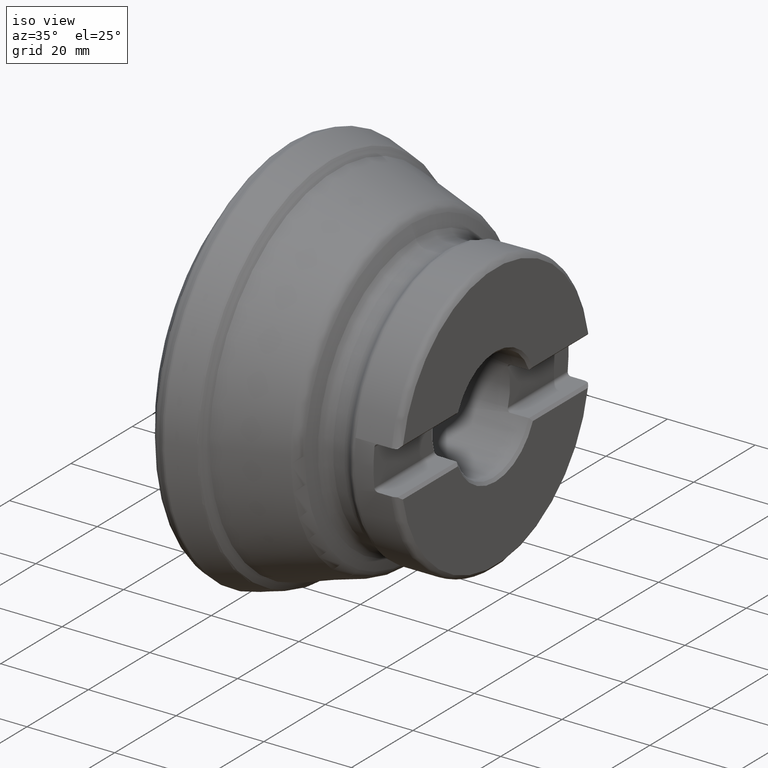
[diagram: clean part render]
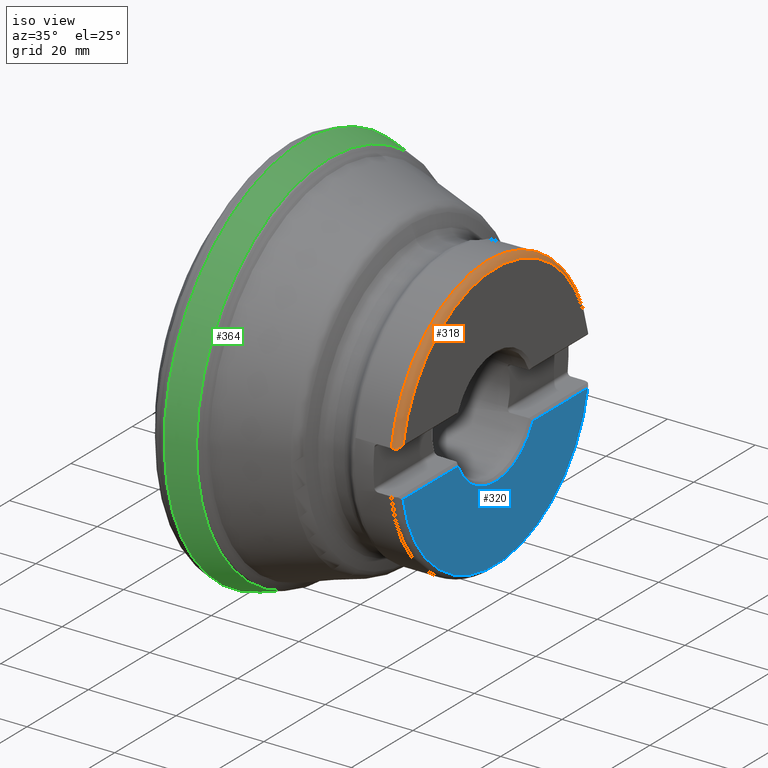
[diagram: same view with three faces highlighted in distinct colors, each labeled with its STEP entity id]
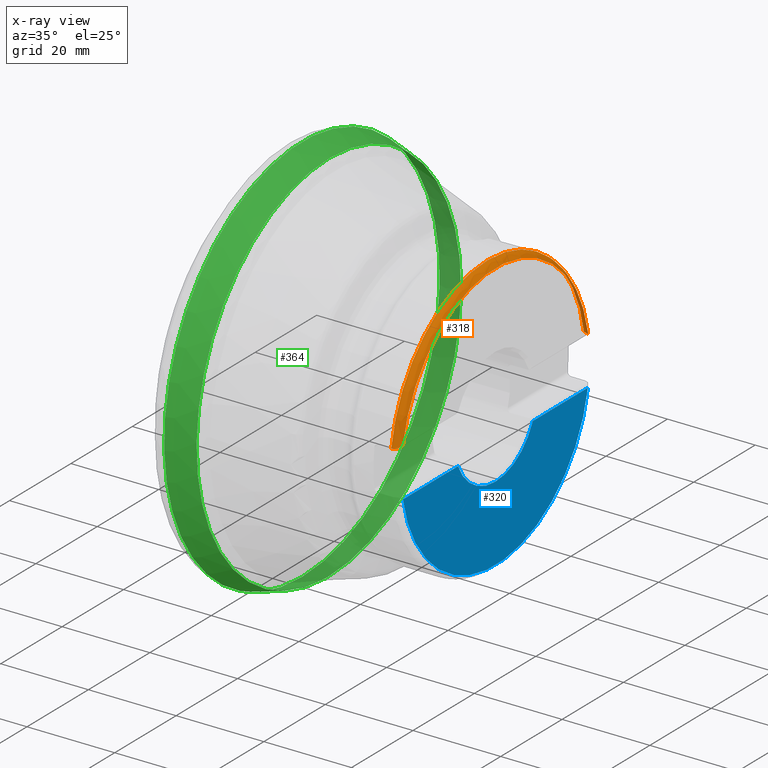
[diagram: x-ray of the same camera — body ghosted, the three highlighted faces saturated]
A machine part, iso view with three faces highlighted in distinct colors.
The next image is the same camera in x-ray (body ghosted, the three faces saturated) — at least one of them is partly hidden behind the body in this view.
Their STEP definitions:

[orange] entity #318 — the highlighted toroidal blend (fillet) surface has major radius 29.75 mm and minor (blend) radius 2 mm.
#318=ADVANCED_FACE('',(#393),#384,.T.);
#384=TOROIDAL_SURFACE('',#1041,29.75,2.);
#393=FACE_OUTER_BOUND('',#417,.T.);
#417=EDGE_LOOP('',(#575,#576,#577,#578,#579,#580));
#528=B_SPLINE_CURVE_WITH_KNOTS('',3,(#1442,#1443,#1444,#1445,#1446,#1447,
#1448,#1449,#1450,#1451,#1452,#1453,#1454),.UNSPECIFIED.,.F.,.F.,(4,3,3,
3,4),(0.,0.0569249167294088,0.575807097567132,0.887690580345275,1.),
 .UNSPECIFIED.);
#529=B_SPLINE_CURVE_WITH_KNOTS('',3,(#1457,#1458,#1459,#1460,#1461,#1462,
#1463),.UNSPECIFIED.,.F.,.F.,(4,3,4),(0.,0.847863870998041,1.),
 .UNSPECIFIED.);
#530=B_SPLINE_CURVE_WITH_KNOTS('',3,(#1467,#1468,#1469,#1470,#1471,#1472,
#1473),.UNSPECIFIED.,.F.,.F.,(4,3,4),(0.,0.85366978662693,1.),
 .UNSPECIFIED.);
#531=B_SPLINE_CURVE_WITH_KNOTS('',3,(#1475,#1476,#1477,#1478,#1479,#1480,
#1481,#1482,#1483,#1484),.UNSPECIFIED.,.F.,.F.,(4,3,3,4),(0.,0.337741414870754,
0.860987360392065,1.),.UNSPECIFIED.);
#575=ORIENTED_EDGE('',*,*,#877,.T.);
#576=ORIENTED_EDGE('',*,*,#878,.T.);
#577=ORIENTED_EDGE('',*,*,#879,.T.);
#578=ORIENTED_EDGE('',*,*,#880,.T.);
#579=ORIENTED_EDGE('',*,*,#881,.T.);
#580=ORIENTED_EDGE('',*,*,#882,.F.);
#791=VERTEX_POINT('',#1455);
#792=VERTEX_POINT('',#1456);
#793=VERTEX_POINT('',#1464);
#794=VERTEX_POINT('',#1466);
#795=VERTEX_POINT('',#1474);
#796=VERTEX_POINT('',#1485);
#877=EDGE_CURVE('',#791,#792,#528,.T.);
#878=EDGE_CURVE('',#792,#793,#529,.T.);
#879=EDGE_CURVE('',#793,#794,#981,.T.);
#880=EDGE_CURVE('',#794,#795,#530,.T.);
#881=EDGE_CURVE('',#795,#796,#531,.T.);
#882=EDGE_CURVE('',#791,#796,#982,.T.);
#981=CIRCLE('',#1039,30.6217797887081);
#982=CIRCLE('',#1040,31.75);
#1039=AXIS2_PLACEMENT_3D('',#1465,#1149,#1150);
#1040=AXIS2_PLACEMENT_3D('',#1486,#1151,#1152);
#1041=AXIS2_PLACEMENT_3D('',#1487,#1153,#1154);
#1149=DIRECTION('',(-1.,0.,0.));
#1150=DIRECTION('',(0.,0.,-1.));
#1151=DIRECTION('',(-1.,0.,0.));
#1152=DIRECTION('',(0.,0.,1.));
#1153=DIRECTION('',(-1.,0.,0.));
#1154=DIRECTION('',(0.,0.,1.));
#1442=CARTESIAN_POINT('',(48.9999999999999,-31.3593889449396,4.965));
#1443=CARTESIAN_POINT('',(49.0245534046461,-31.3593889449396,4.965));
#1444=CARTESIAN_POINT('',(49.0491110754031,-31.3589309979099,4.965));
#1445=CARTESIAN_POINT('',(49.07364741034,-31.3580156031384,4.965));
#1446=CARTESIAN_POINT('',(49.2947939584184,-31.3497651291221,4.965));
#1447=CARTESIAN_POINT('',(49.5175444892176,-31.3031676867685,4.965));
#1448=CARTESIAN_POINT('',(49.7235161186829,-31.222238372525,4.965));
#1449=CARTESIAN_POINT('',(49.8484502093576,-31.1731499116035,4.965));
#1450=CARTESIAN_POINT('',(49.9689830261881,-31.1110068481678,4.965));
#1451=CARTESIAN_POINT('',(50.0814775653602,-31.0377730945782,4.965));
#1452=CARTESIAN_POINT('',(50.1219678125004,-31.0114140125847,4.965));
#1453=CARTESIAN_POINT('',(50.1615264027508,-30.9835658043789,4.965));
#1454=CARTESIAN_POINT('',(50.1999999999969,-30.9543417794686,4.965));
#1455=CARTESIAN_POINT('',(48.9999999999999,-31.3593889449396,4.965));
#1456=CARTESIAN_POINT('',(50.1999999999969,-30.9543417794686,4.965));
#1457=CARTESIAN_POINT('',(50.1999999999969,-30.9543417794686,4.965));
#1458=CARTESIAN_POINT('',(50.4004618588366,-30.769920071336,5.16546185883976));
#1459=CARTESIAN_POINT('',(50.5847423586639,-30.5375371432286,5.34974235866406));
#1460=CARTESIAN_POINT('',(50.7265770060084,-30.2652374080931,5.49157700600853));
#1461=CARTESIAN_POINT('',(50.7524692619016,-30.2155284367397,5.5174692619017));
#1462=CARTESIAN_POINT('',(50.7770212736329,-30.164356286827,5.54202127363301));
#1463=CARTESIAN_POINT('',(50.7999999999999,-30.1118609924417,5.565));
#1464=CARTESIAN_POINT('',(50.7999999999999,-30.1118609924417,5.565));
#1465=CARTESIAN_POINT('',(50.7999999999999,0.,0.));
#1466=CARTESIAN_POINT('',(50.7999999999999,30.1118609924417,5.565));
#1467=CARTESIAN_POINT('',(50.7999999999999,30.1118609924417,5.565));
#1468=CARTESIAN_POINT('',(50.6733140538876,30.4012772085289,5.43831405388768));
#1469=CARTESIAN_POINT('',(50.4977301776916,30.6522628559442,5.26273017769173));
#1470=CARTESIAN_POINT('',(50.3035118237747,30.8533072938742,5.06851182377483));
#1471=CARTESIAN_POINT('',(50.2696818523477,30.8883262684128,5.03468185234778));
#1472=CARTESIAN_POINT('',(50.2351425408301,30.922011203238,5.00014254083019));
#1473=CARTESIAN_POINT('',(50.1999999999999,30.9543417794661,4.965));
#1474=CARTESIAN_POINT('',(50.1999999999999,30.9543417794661,4.965));
#1475=CARTESIAN_POINT('',(50.1999999999999,30.9543417794661,4.965));
#1476=CARTESIAN_POINT('',(50.0848029209846,31.0418439250341,4.965));
#1477=CARTESIAN_POINT('',(49.9593231704183,31.1172220673418,4.965));
#1478=CARTESIAN_POINT('',(49.8279237156889,31.1777297180106,4.965));
#1479=CARTESIAN_POINT('',(49.6247050882999,31.271309114826,4.965));
#1480=CARTESIAN_POINT('',(49.4023465680957,31.3308803536284,4.965));
#1481=CARTESIAN_POINT('',(49.1795428595669,31.351213122549,4.965));
#1482=CARTESIAN_POINT('',(49.1198811421726,31.3566577712095,4.965));
#1483=CARTESIAN_POINT('',(49.0599096379682,31.3593889449419,4.965));
#1484=CARTESIAN_POINT('',(49.0000000000001,31.3593889449419,4.965));
#1485=CARTESIAN_POINT('',(49.0000000000001,31.3593889449419,4.965));
#1486=CARTESIAN_POINT('',(48.9999999999999,0.,0.));
#1487=CARTESIAN_POINT('',(48.9999999999999,0.,0.));

[blue] entity #320 — the highlighted planar face has unit normal (1, 0, 0).
#158=PLANE('',#1047);
#189=LINE('',#1572,#213);
#190=LINE('',#1573,#214);
#213=VECTOR('',#1169,1.);
#214=VECTOR('',#1170,1.);
#320=ADVANCED_FACE('',(#394),#158,.T.);
#394=FACE_OUTER_BOUND('',#420,.T.);
#420=EDGE_LOOP('',(#594,#595,#596,#597));
#594=ORIENTED_EDGE('',*,*,#894,.T.);
#595=ORIENTED_EDGE('',*,*,#895,.T.);
#596=ORIENTED_EDGE('',*,*,#871,.F.);
#597=ORIENTED_EDGE('',*,*,#896,.T.);
#785=VERTEX_POINT('',#1400);
#786=VERTEX_POINT('',#1401);
#806=VERTEX_POINT('',#1570);
#807=VERTEX_POINT('',#1571);
#871=EDGE_CURVE('',#785,#786,#979,.T.);
#894=EDGE_CURVE('',#806,#807,#986,.T.);
#895=EDGE_CURVE('',#807,#786,#189,.T.);
#896=EDGE_CURVE('',#785,#806,#190,.T.);
#979=CIRCLE('',#1036,30.6217797887081);
#986=CIRCLE('',#1046,13.4158517456687);
#1036=AXIS2_PLACEMENT_3D('',#1399,#1143,#1144);
#1046=AXIS2_PLACEMENT_3D('',#1569,#1167,#1168);
#1047=AXIS2_PLACEMENT_3D('',#1574,#1171,#1172);
#1143=DIRECTION('',(-1.,0.,0.));
#1144=DIRECTION('',(0.,0.,-1.));
#1167=DIRECTION('',(-1.,0.,0.));
#1168=DIRECTION('',(0.,0.,-1.));
#1169=DIRECTION('',(0.,-1.,-3.38212701279084E-31));
#1170=DIRECTION('',(0.,-1.,-3.38212701279084E-31));
#1171=DIRECTION('',(1.,0.,0.));
#1172=DIRECTION('',(0.,0.,-1.));
#1399=CARTESIAN_POINT('',(50.7999999999999,0.,0.));
#1400=CARTESIAN_POINT('',(50.7999999999999,30.1118609924417,-5.56499999999999));
#1401=CARTESIAN_POINT('',(50.7999999999999,-30.1118609924417,-5.56499999999999));
#1569=CARTESIAN_POINT('',(50.7999999999999,6.78113486901518E-14,-6.01481690630002E-15));
#1570=CARTESIAN_POINT('',(50.7999999999999,12.2072049651737,-5.56499999999999));
#1571=CARTESIAN_POINT('',(50.7999999999999,-12.2072049651736,-5.56499999999999));
#1572=CARTESIAN_POINT('',(50.7999999999999,1.8821536826181E-30,-5.56499999999999));
#1573=CARTESIAN_POINT('',(50.7999999999999,1.8821536826181E-30,-5.56499999999999));
#1574=CARTESIAN_POINT('',(50.7999999999999,0.,0.));

[green] entity #364 — the highlighted face is a SurfaceOfRevolution surface.
#107=SURFACE_OF_REVOLUTION('',#552,#128);
#128=AXIS1_PLACEMENT('',#1850,#1345);
#281=FACE_BOUND('',#487,.T.);
#282=FACE_BOUND('',#488,.T.);
#364=ADVANCED_FACE('',(#281,#282),#107,.F.);
#487=EDGE_LOOP('',(#748));
#488=EDGE_LOOP('',(#749));
#552=B_SPLINE_CURVE_WITH_KNOTS('',3,(#1845,#1846,#1847,#1848,#1849),
 .UNSPECIFIED.,.F.,.F.,(4,1,4),(0.,0.5,1.),.UNSPECIFIED.);
#748=ORIENTED_EDGE('',*,*,#962,.T.);
#749=ORIENTED_EDGE('',*,*,#961,.F.);
#853=VERTEX_POINT('',#1836);
#854=VERTEX_POINT('',#1844);
#961=EDGE_CURVE('',#853,#853,#1017,.T.);
#962=EDGE_CURVE('',#854,#854,#1018,.T.);
#1017=CIRCLE('',#1121,43.067930802399);
#1018=CIRCLE('',#1122,44.8482682604931);
#1121=AXIS2_PLACEMENT_3D('',#1835,#1340,#1341);
#1122=AXIS2_PLACEMENT_3D('',#1843,#1343,#1344);
#1340=DIRECTION('',(1.,0.,0.));
#1341=DIRECTION('',(0.,0.,-1.));
#1343=DIRECTION('',(1.,0.,0.));
#1344=DIRECTION('',(0.,0.,-1.));
#1345=DIRECTION('',(1.,0.,0.));
#1835=CARTESIAN_POINT('',(12.816686550849,0.,0.));
#1836=CARTESIAN_POINT('',(12.816686550849,0.,-43.067930802399));
#1843=CARTESIAN_POINT('',(6.68001803411345,0.,0.));
#1844=CARTESIAN_POINT('',(6.68001803411345,0.,-44.8482682604931));
#1845=CARTESIAN_POINT('',(12.816686550849,-42.3961451060004,7.57717254331664));
#1846=CARTESIAN_POINT('',(11.8337264314717,-42.7168398115545,7.2356573397888));
#1847=CARTESIAN_POINT('',(9.8043372030476,-43.3694707972656,6.74709005766478));
#1848=CARTESIAN_POINT('',(7.71896306405707,-44.0220797979513,6.65737900336938));
#1849=CARTESIAN_POINT('',(6.68001803411345,-44.3427525184799,6.71472002767014));
#1850=CARTESIAN_POINT('',(0.,0.,0.));